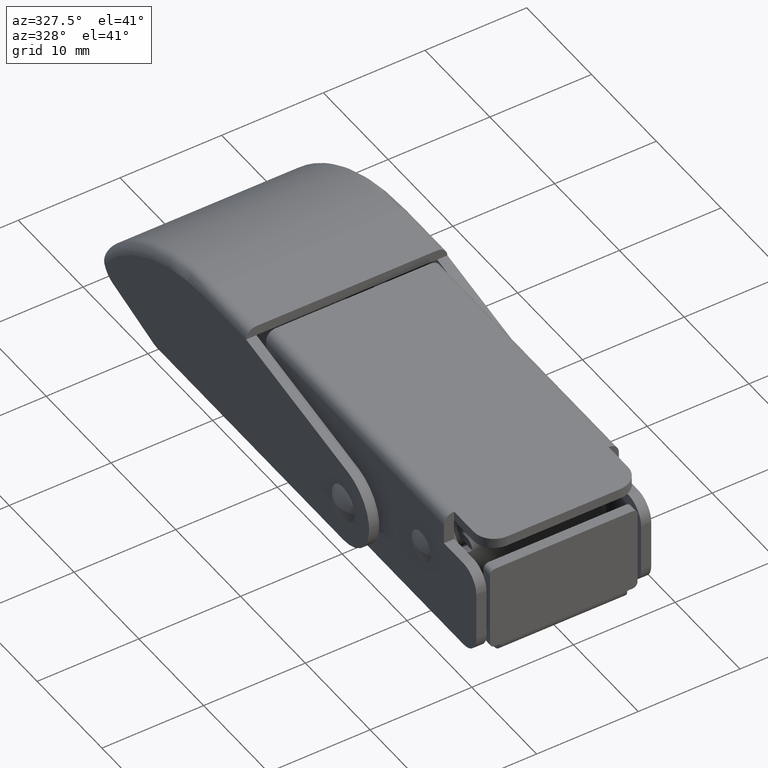
[diagram: clean part render]
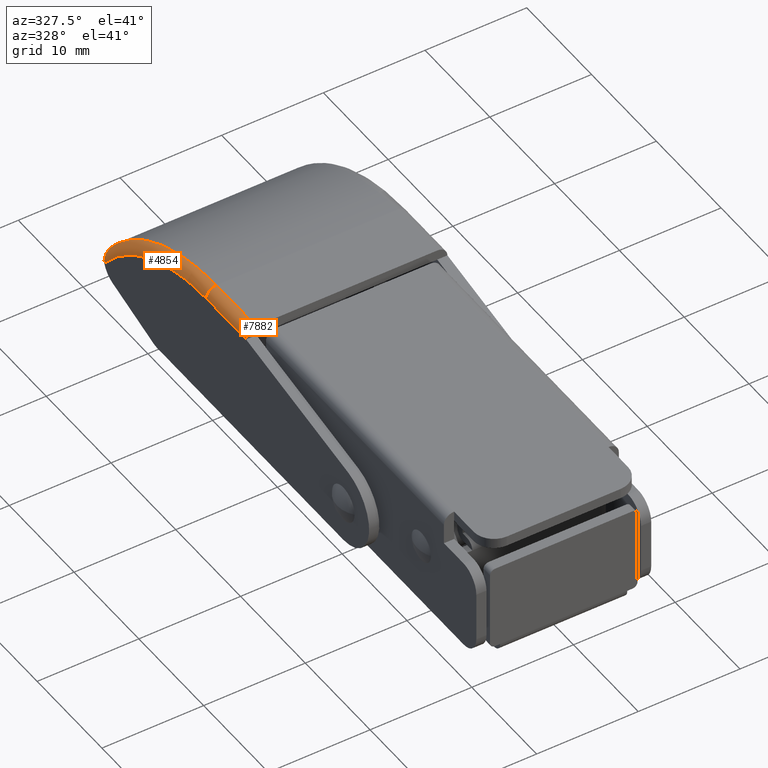
[diagram: same view with one multi-face feature highlighted, each face labeled with its STEP entity id]
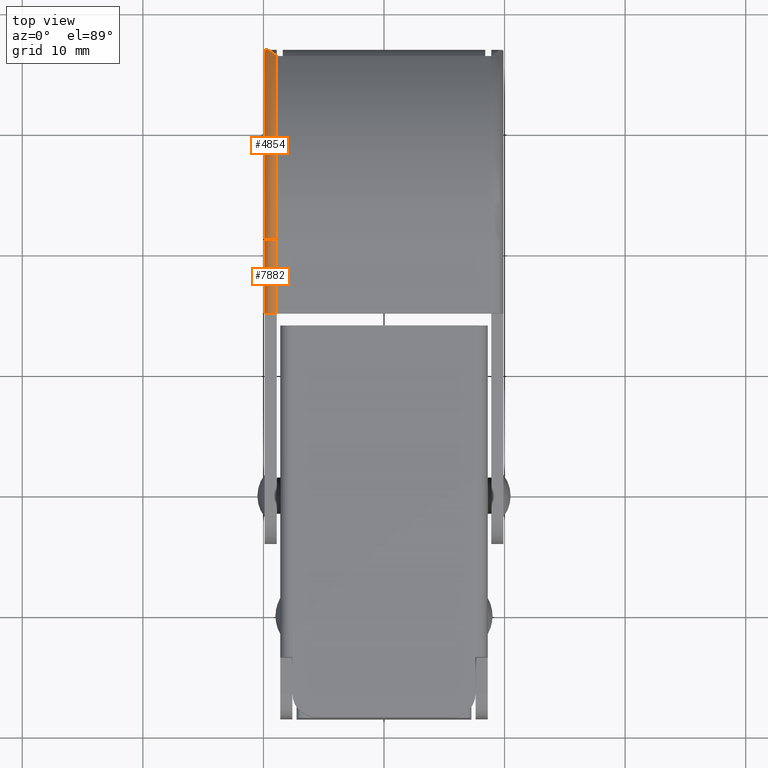
[diagram: same view with one multi-face feature highlighted, each face labeled with its STEP entity id]
A machine part, auxiliary view. The highlighted faces form ONE feature: a constant-radius fillet chain: 2 tangent blend faces with common blend radius 1 mm. The faces share edges in the B-rep.
A second angle (top view) of the same feature is appended — it is thin or edge-on in the first view.
Their STEP definitions:
[1] entity #7882 (Cylinder):
#420 = ORIENTED_EDGE ( 'NONE', *, *, #6159, .T. ) ;
#640 = EDGE_CURVE ( 'NONE', #5339, #2219, #7307, .T. ) ;
#1352 = AXIS2_PLACEMENT_3D ( 'NONE', #1776, #6103, #2429 ) ;
#1457 = DIRECTION ( 'NONE',  ( 0.0000000000000000000, -1.000000000000000000, -0.0000000000000000000 ) ) ;
#1568 = DIRECTION ( 'NONE',  ( -0.0000000000000000000, 1.000000000000000000, -0.0000000000000000000 ) ) ;
#1576 = DIRECTION ( 'NONE',  ( 0.0000000000000000000, -1.000000000000000000, 0.0000000000000000000 ) ) ;
#1619 = CARTESIAN_POINT ( 'NONE',  ( -8.899999999999998600, 15.00000000000000000, 7.000000000000001800 ) ) ;
#1759 = EDGE_CURVE ( 'NONE', #2219, #6299, #5967, .T. ) ;
#1776 = CARTESIAN_POINT ( 'NONE',  ( -8.899999999999998600, 21.14359353944897900, 7.000000000000005300 ) ) ;
#1935 = EDGE_CURVE ( 'NONE', #5136, #5339, #5877, .T. ) ;
#2101 = ORIENTED_EDGE ( 'NONE', *, *, #640, .F. ) ;
#2219 = VERTEX_POINT ( 'NONE', #2511 ) ;
#2337 = DIRECTION ( 'NONE',  ( 0.0000000000000000000, 0.0000000000000000000, 1.000000000000000000 ) ) ;
#2429 = DIRECTION ( 'NONE',  ( 0.0000000000000000000, 0.0000000000000000000, -1.000000000000000000 ) ) ;
#2511 = CARTESIAN_POINT ( 'NONE',  ( -9.899999999999998600, 15.00000000000000000, 7.000000000000001800 ) ) ;
#3096 = FACE_OUTER_BOUND ( 'NONE', #5288, .T. ) ;
#3936 = ORIENTED_EDGE ( 'NONE', *, *, #1935, .F. ) ;
#4105 = CIRCLE ( 'NONE', #1352, 1.000000000000000000 ) ;
#4163 = CARTESIAN_POINT ( 'NONE',  ( -8.899999999999998600, 15.00000000000000000, 8.000000000000001800 ) ) ;
#4392 = CARTESIAN_POINT ( 'NONE',  ( -9.899999999999998600, 21.14359353944897900, 7.000000000000005300 ) ) ;
#4673 = CARTESIAN_POINT ( 'NONE',  ( -8.899999999999998600, 21.14359353944897200, 8.000000000000001800 ) ) ;
#4891 = ORIENTED_EDGE ( 'NONE', *, *, #1759, .F. ) ;
#5125 = CARTESIAN_POINT ( 'NONE',  ( -8.899999999999998600, 21.14359353944897900, 8.000000000000005300 ) ) ;
#5136 = VERTEX_POINT ( 'NONE', #5125 ) ;
#5288 = EDGE_LOOP ( 'NONE', ( #3936, #420, #4891, #2101 ) ) ;
#5339 = VERTEX_POINT ( 'NONE', #4163 ) ;
#5409 = DIRECTION ( 'NONE',  ( 0.0000000000000000000, 1.000000000000000000, 0.0000000000000000000 ) ) ;
#5479 = CARTESIAN_POINT ( 'NONE',  ( -9.899999999999998600, 21.14359353944897200, 7.000000000000001800 ) ) ;
#5573 = VECTOR ( 'NONE', #1568, 1000.000000000000000 ) ;
#5802 = AXIS2_PLACEMENT_3D ( 'NONE', #1619, #1457, #7603 ) ;
#5877 = LINE ( 'NONE', #4673, #7483 ) ;
#5967 = LINE ( 'NONE', #5479, #5573 ) ;
#5992 = CYLINDRICAL_SURFACE ( 'NONE', #6901, 1.000000000000000000 ) ;
#6103 = DIRECTION ( 'NONE',  ( 0.0000000000000000000, -1.000000000000000000, 0.0000000000000000000 ) ) ;
#6159 = EDGE_CURVE ( 'NONE', #5136, #6299, #4105, .T. ) ;
#6299 = VERTEX_POINT ( 'NONE', #4392 ) ;
#6645 = CARTESIAN_POINT ( 'NONE',  ( -8.899999999999998600, 21.14359353944897200, 7.000000000000001800 ) ) ;
#6901 = AXIS2_PLACEMENT_3D ( 'NONE', #6645, #5409, #2337 ) ;
#7307 = CIRCLE ( 'NONE', #5802, 1.000000000000000000 ) ;
#7483 = VECTOR ( 'NONE', #1576, 1000.000000000000000 ) ;
#7603 = DIRECTION ( 'NONE',  ( 0.0000000000000000000, 0.0000000000000000000, 1.000000000000000000 ) ) ;
#7882 = ADVANCED_FACE ( 'NONE', ( #3096 ), #5992, .T. ) ;
[2] entity #4854 (Torus):
#112 = AXIS2_PLACEMENT_3D ( 'NONE', #4155, #439, #4765 ) ;
#439 = DIRECTION ( 'NONE',  ( 1.000000000000000000, -0.0000000000000000000, -0.0000000000000000000 ) ) ;
#587 = ORIENTED_EDGE ( 'NONE', *, *, #3089, .F. ) ;
#768 = CARTESIAN_POINT ( 'NONE',  ( -9.851286064248187200, 36.98346162334326000, -0.2751890258464342900 ) ) ;
#830 = CARTESIAN_POINT ( 'NONE',  ( -8.899999999999998600, 21.14359353944897500, -13.00000000000000000 ) ) ;
#849 = B_SPLINE_CURVE_WITH_KNOTS ( 'NONE', 3,
 ( #4473, #6926, #3248, #768, #5096, #1379, #5719, #2009, #6321, #2656, #6951, #3275 ),
 .UNSPECIFIED., .F., .F.,
 ( 4, 2, 2, 2, 2, 4 ),
 ( 4.336808689942017700E-019, 0.0003027947166730010000, 0.0006055894333460015700, 0.001211178866692004200, 0.001816768300038006900, 0.002422357733384009800 ),
 .UNSPECIFIED. ) ;
#947 = EDGE_CURVE ( 'NONE', #6299, #5132, #4157, .T. ) ;
#1352 = AXIS2_PLACEMENT_3D ( 'NONE', #1776, #6103, #2429 ) ;
#1379 = CARTESIAN_POINT ( 'NONE',  ( -9.727003251830062400, 37.00611112946207700, 0.1127394337990371300 ) ) ;
#1524 = CARTESIAN_POINT ( 'NONE',  ( -8.900000000000000400, 36.45856910111063300, 1.368421052631581200 ) ) ;
#1551 = ORIENTED_EDGE ( 'NONE', *, *, #947, .F. ) ;
#1776 = CARTESIAN_POINT ( 'NONE',  ( -8.899999999999998600, 21.14359353944897900, 7.000000000000005300 ) ) ;
#2009 = CARTESIAN_POINT ( 'NONE',  ( -9.449987208834166100, 36.90124619679936300, 0.6461044276443803600 ) ) ;
#2253 = DIRECTION ( 'NONE',  ( -1.000000000000000000, 0.0000000000000000000, 0.0000000000000000000 ) ) ;
#2429 = DIRECTION ( 'NONE',  ( 0.0000000000000000000, 0.0000000000000000000, -1.000000000000000000 ) ) ;
#2656 = CARTESIAN_POINT ( 'NONE',  ( -9.127753488955248100, 36.67456570164913600, 1.106801310302195900 ) ) ;
#2705 = CIRCLE ( 'NONE', #112, 21.00000000000000400 ) ;
#3089 = EDGE_CURVE ( 'NONE', #5132, #7750, #849, .T. ) ;
#3248 = CARTESIAN_POINT ( 'NONE',  ( -9.888942948729672700, 36.94647476631521200, -0.4701967623452445500 ) ) ;
#3275 = CARTESIAN_POINT ( 'NONE',  ( -8.900000000000000400, 36.45856910111063300, 1.368421052631581200 ) ) ;
#3562 = TOROIDAL_SURFACE ( 'NONE', #4635, 20.00000000000000400, 1.000000000000000000 ) ;
#3818 = EDGE_CURVE ( 'NONE', #7750, #5136, #2705, .T. ) ;
#3928 = ORIENTED_EDGE ( 'NONE', *, *, #3818, .F. ) ;
#3990 = CARTESIAN_POINT ( 'NONE',  ( -9.899999999999998600, 36.88638299840231800, -0.6644991973950447100 ) ) ;
#4105 = CIRCLE ( 'NONE', #1352, 1.000000000000000000 ) ;
#4155 = CARTESIAN_POINT ( 'NONE',  ( -8.899999999999998600, 21.14359353944897500, -13.00000000000000000 ) ) ;
#4157 = CIRCLE ( 'NONE', #4819, 20.00000000000000400 ) ;
#4392 = CARTESIAN_POINT ( 'NONE',  ( -9.899999999999998600, 21.14359353944897900, 7.000000000000005300 ) ) ;
#4473 = CARTESIAN_POINT ( 'NONE',  ( -9.899999999999998600, 36.88638299840231800, -0.6644991973950447100 ) ) ;
#4635 = AXIS2_PLACEMENT_3D ( 'NONE', #830, #5782, #7015 ) ;
#4689 = CARTESIAN_POINT ( 'NONE',  ( -9.899999999999998600, 21.14359353944897500, -13.00000000000000000 ) ) ;
#4765 = DIRECTION ( 'NONE',  ( 0.0000000000000000000, 0.0000000000000000000, 1.000000000000000000 ) ) ;
#4819 = AXIS2_PLACEMENT_3D ( 'NONE', #4689, #2253, #6392 ) ;
#4854 = ADVANCED_FACE ( 'NONE', ( #5184 ), #3562, .T. ) ;
#4858 = EDGE_LOOP ( 'NONE', ( #7860, #3928, #587, #1551 ) ) ;
#5096 = CARTESIAN_POINT ( 'NONE',  ( -9.824189091670371400, 36.99454594964432600, -0.1763078718568109600 ) ) ;
#5125 = CARTESIAN_POINT ( 'NONE',  ( -8.899999999999998600, 21.14359353944897900, 8.000000000000005300 ) ) ;
#5132 = VERTEX_POINT ( 'NONE', #3990 ) ;
#5136 = VERTEX_POINT ( 'NONE', #5125 ) ;
#5184 = FACE_OUTER_BOUND ( 'NONE', #4858, .T. ) ;
#5719 = CARTESIAN_POINT ( 'NONE',  ( -9.641377879549379400, 36.98588417426356000, 0.2974089418212258500 ) ) ;
#5782 = DIRECTION ( 'NONE',  ( -1.000000000000000000, 0.0000000000000000000, 0.0000000000000000000 ) ) ;
#6103 = DIRECTION ( 'NONE',  ( 0.0000000000000000000, -1.000000000000000000, 0.0000000000000000000 ) ) ;
#6159 = EDGE_CURVE ( 'NONE', #5136, #6299, #4105, .T. ) ;
#6299 = VERTEX_POINT ( 'NONE', #4392 ) ;
#6321 = CARTESIAN_POINT ( 'NONE',  ( -9.346016583887845300, 36.83800565571786500, 0.8067928105625686900 ) ) ;
#6392 = DIRECTION ( 'NONE',  ( 0.0000000000000000000, 0.0000000000000000000, 1.000000000000000000 ) ) ;
#6926 = CARTESIAN_POINT ( 'NONE',  ( -9.899999999999996800, 36.92060173915862000, -0.5673588982908460700 ) ) ;
#6951 = CARTESIAN_POINT ( 'NONE',  ( -9.012659825532649500, 36.57317507820170700, 1.246265129448298700 ) ) ;
#7015 = DIRECTION ( 'NONE',  ( 0.0000000000000000000, 0.0000000000000000000, 1.000000000000000000 ) ) ;
#7750 = VERTEX_POINT ( 'NONE', #1524 ) ;
#7860 = ORIENTED_EDGE ( 'NONE', *, *, #6159, .F. ) ;